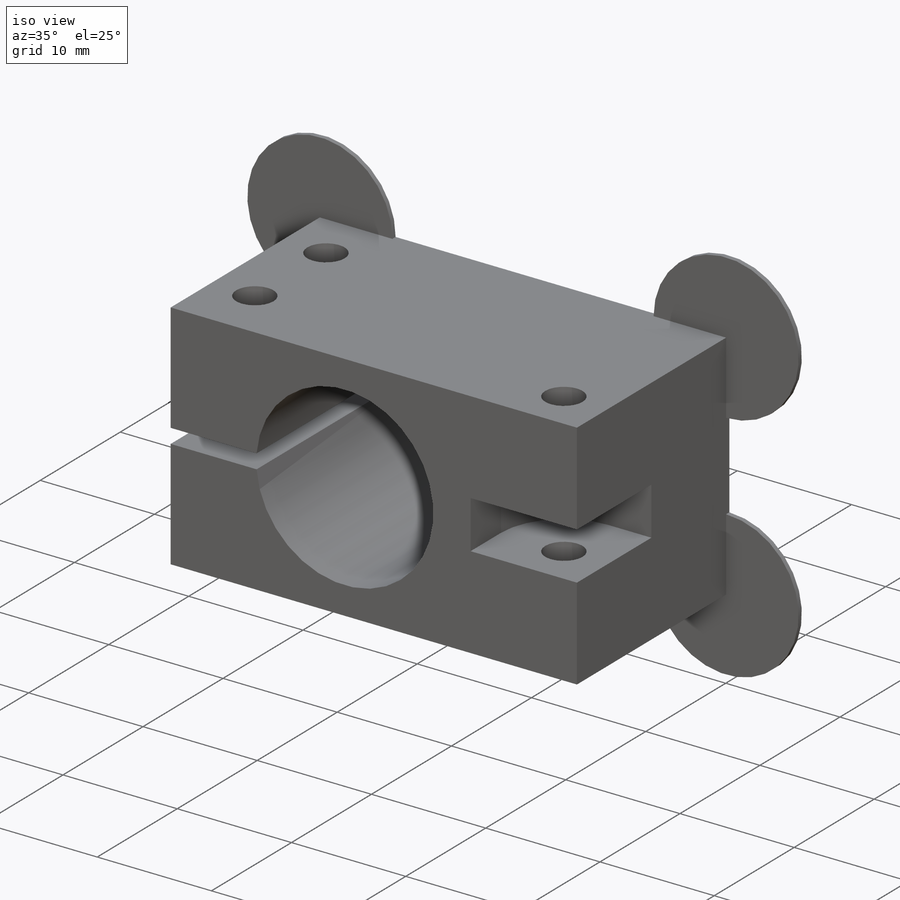
[diagram: iso view]
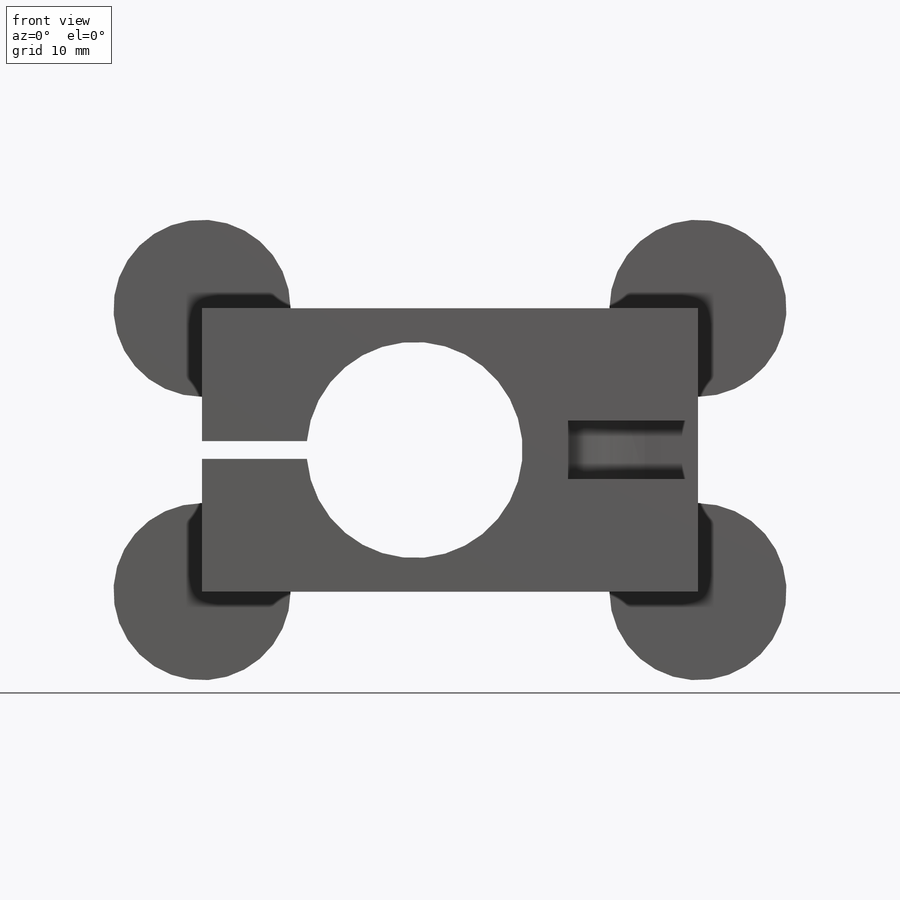
[diagram: front view]
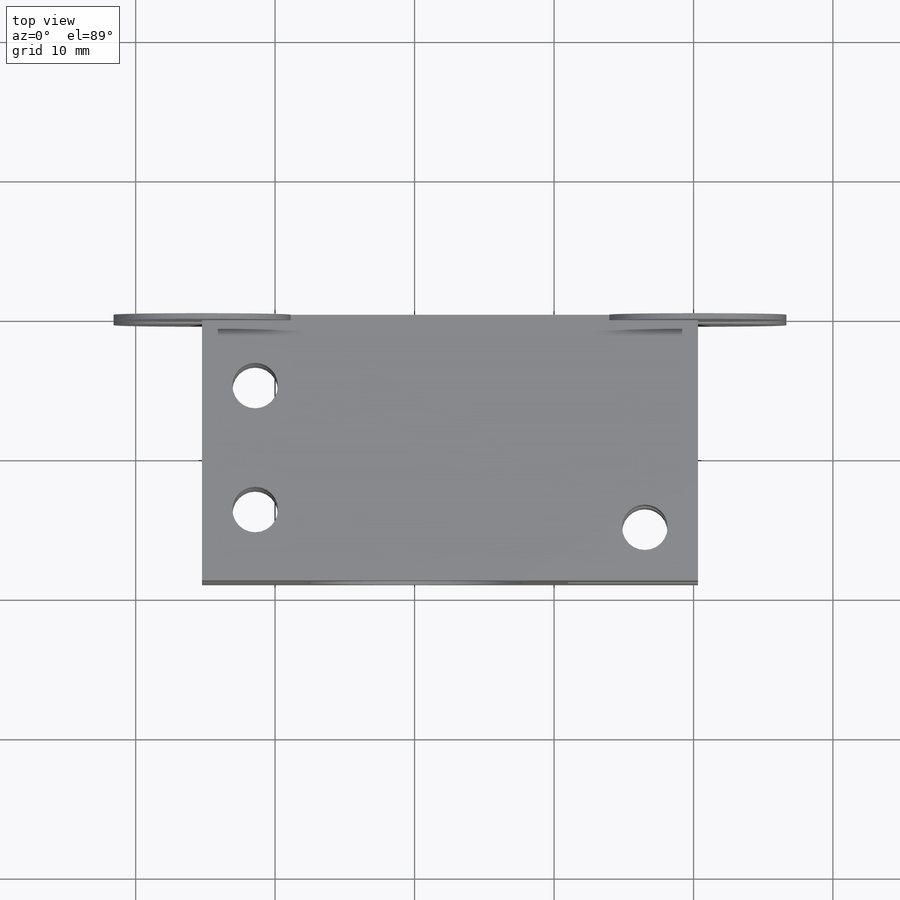
[diagram: top view]
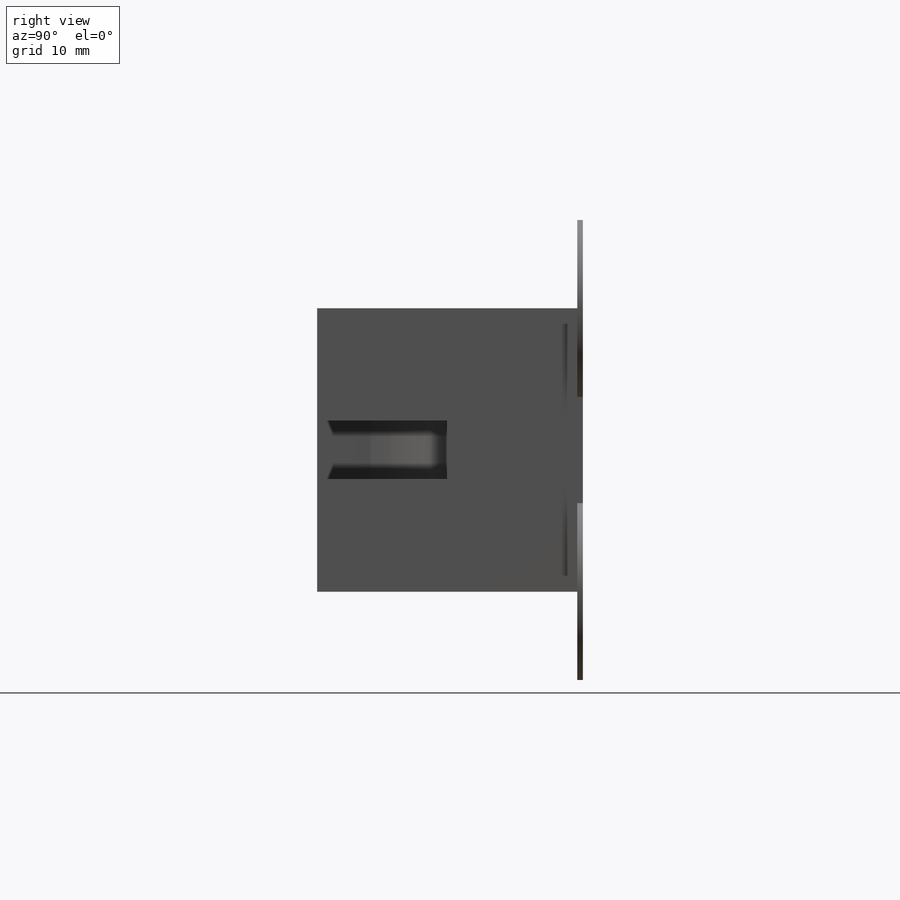
[diagram: right view]
SOLIDWORKS PART (.sldprt)
format: sldprt  version: not decoded by parser v0  size: 452,608 bytes
history: native  units: mm
features: sketch x7, cut_extrude x3, extrude x2, material x1, plane x1, hole x1 (+13 scaffold rows collapsed)
feature tree (28):
  scaffold x13  (default folders/planes/origin — collapsed)
  material  "Material <not specified>"
  sketch  "Sketch1"  dims[c1.D1=25.4mm c1.D2=25.4mm c2.D1=20.32mm c2.D2=15.24mm c2.D3=35.56mm]
  extrude  "Boss-Extrude1"  Depth=19.05mm
  sketch  "Sketch2"  dims[D1=15.494mm]
  cut_extrude  "Cut-Extrude1"  [1 undecoded]
  sketch  "Sketch3"  dims[D1=1.27mm]
  cut_extrude  "Cut-Extrude2"  [1 undecoded]
  plane  "Plane1"
  sketch  "Sketch9"  dims[D1=11.0mm D2=3.81mm D3=3.81mm]
  cut_extrude  "Cut-Extrude4"  Depth=4.2mm
  hole  "#4 Clearance Hole1"  Diameter=3.2639mm Depth=20.32mm
  sketch  "Sketch6"  dims[D1=3.81mm D2=5.08mm D3=5.08mm D4=3.81mm D5=3.81mm]
  sketch  "Sketch5"  dims[hole-wizard template sketch: 60 standard entries collapsed; hole parameters kept: c18.Thru Hole Depth=20.32mm]
  sketch  "Sketch12"  dims[D1=12.7mm]
  extrude  "Boss-Extrude2"  Depth=0.4mm
decode coverage: 11 of 13 modeling features carry decoded parameters
note: ~ marks probable driven/reference dimensions
note: 2 parameter values undecoded
note: suppression state not decoded; provenance and decode notes live in map.json
